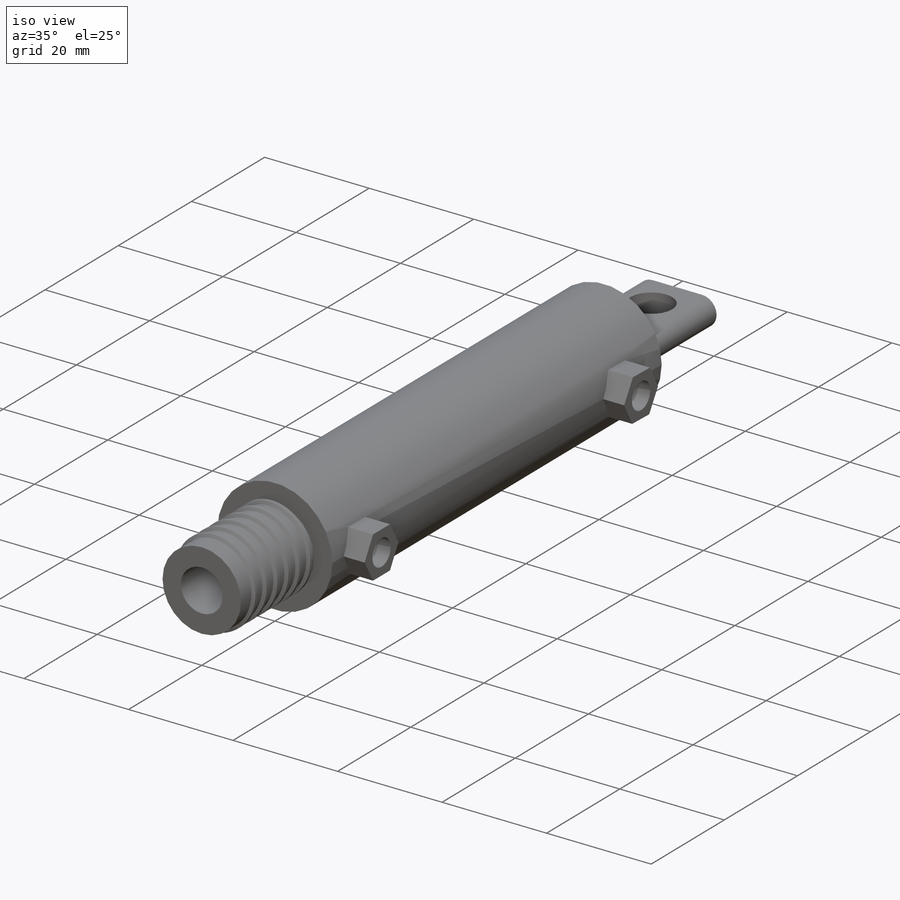
[diagram: iso view]
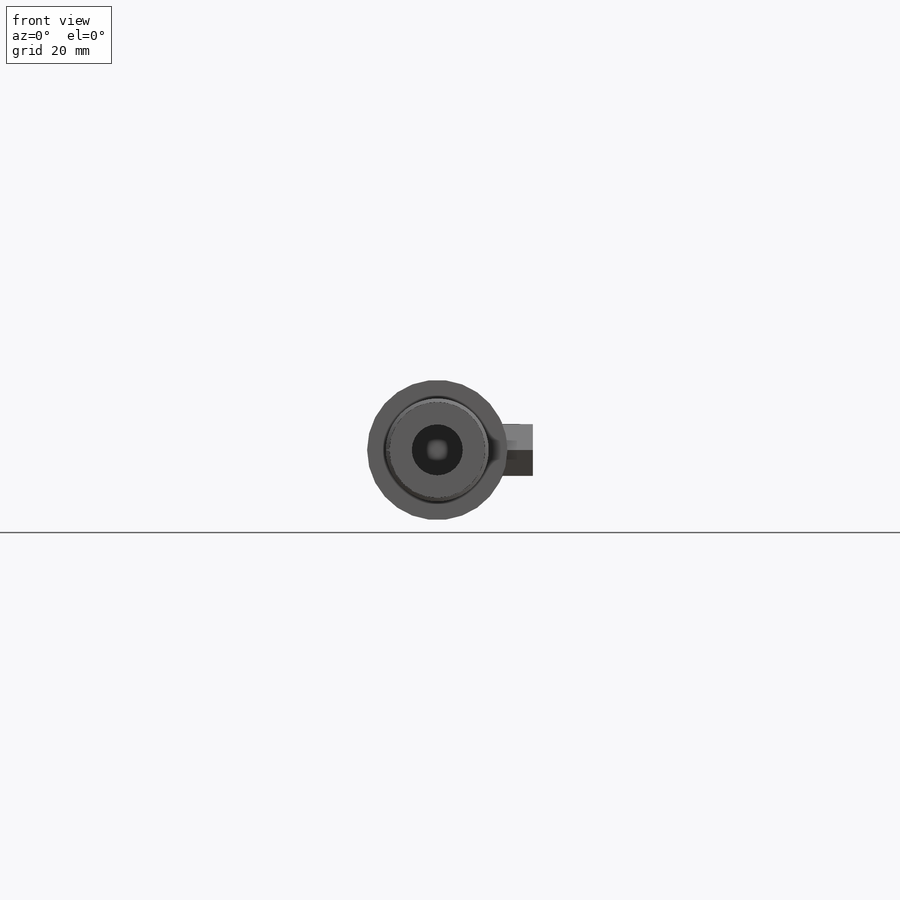
[diagram: front view]
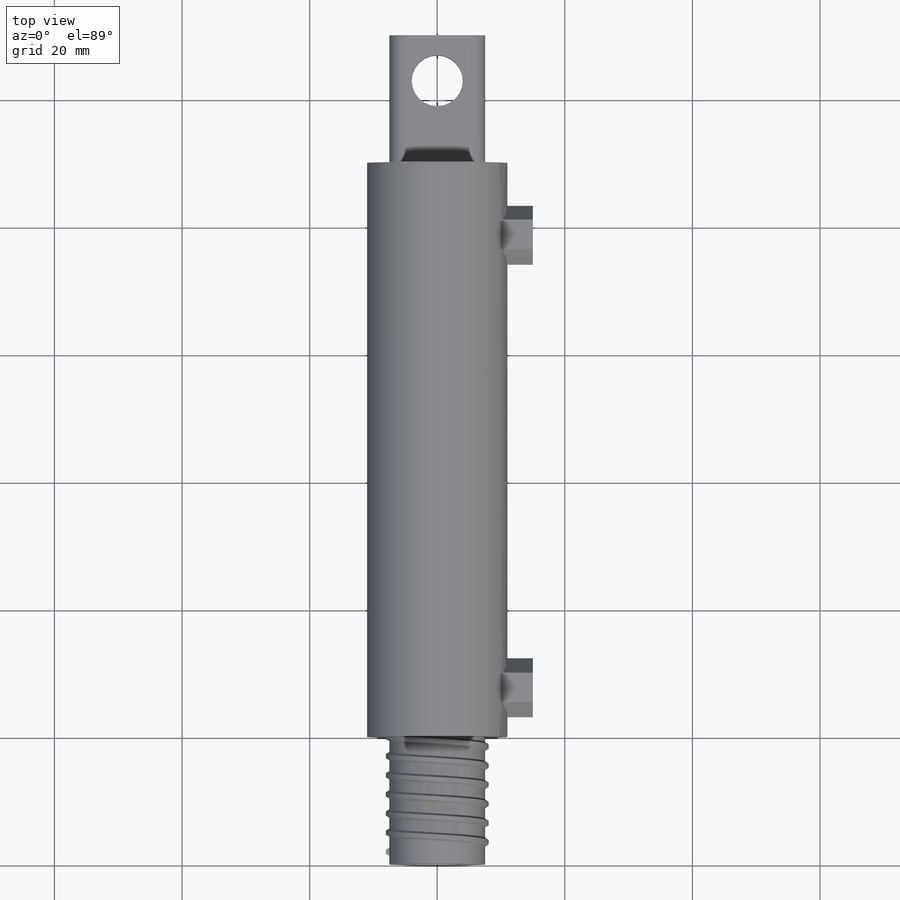
[diagram: top view]
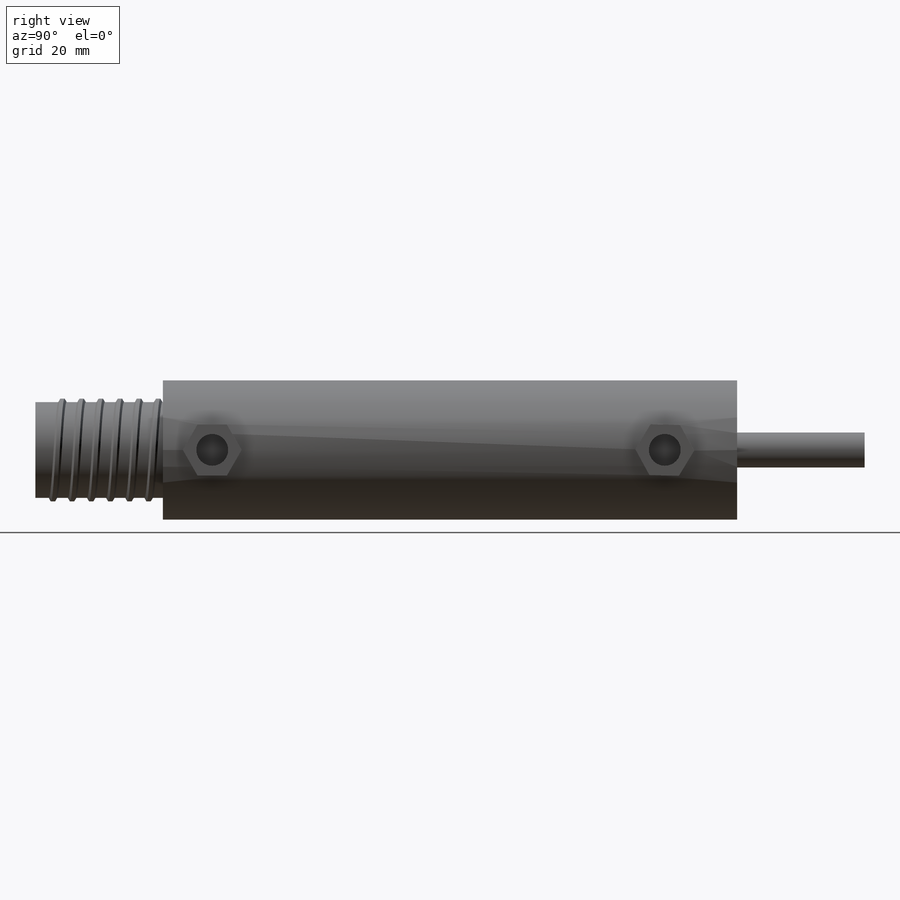
[diagram: right view]
SOLIDWORKS PART (.sldprt)
format: sldprt  version: not decoded by parser v0  size: 419,840 bytes
history: native  units: mm
features: sketch x9, extrude x4, cut_extrude x3, fillet x2, plane x2, material x1, helix x1, sweep x1 (+13 scaffold rows collapsed)
feature tree (36):
  scaffold x13  (default folders/planes/origin — collapsed)
  material  "Material <not specified>"
  sketch  "Sketch1"  dims[D1=22.0mm D2=15.0mm]
  extrude  "Boss-Extrude1"  Depth=90mm
  extrude  "Boss-Extrude2"  [1 undecoded]
  sketch  "Sketch1<3>"  dims[D1=20.0mm]
  sketch  "Sketch2"  dims[D1=5.5mm D2=15.0mm]
  extrude  "Boss-Extrude3"  Depth=20mm
  fillet  "Fillet1"  [1 undecoded]
  fillet  "Fillet2"  [1 undecoded]
  sketch  "Sketch3"  dims[D1=8.0mm]
  cut_extrude  "Cut-Extrude1"  Depth=20mm
  sketch  "Sketch4"  dims[D1=8.0mm]
  cut_extrude  "Cut-Extrude2"  Depth=50mm
  plane  "Plane1"  Offset=15mm
  sketch  "Sketch5"  dims[D1=8.0mm]
  extrude  "Boss-Extrude4"  Depth=7mm
  sketch  "Sketch6"  dims[D1=5.0mm D2=5.0mm]
  cut_extrude  "Cut-Extrude3"  Depth=7mm
  sketch  "Sketch8"
  helix  "Helix/Spiral1"  Pitch=18mm
  plane  "Plane2"
  sketch  "Sketch10"
  sweep  "Sweep5"
decode coverage: 14 of 20 modeling features carry decoded parameters
note: 3 parameter values undecoded
summary: no parameter record found for 3 features
note: suppression state not decoded; provenance and decode notes live in map.json
